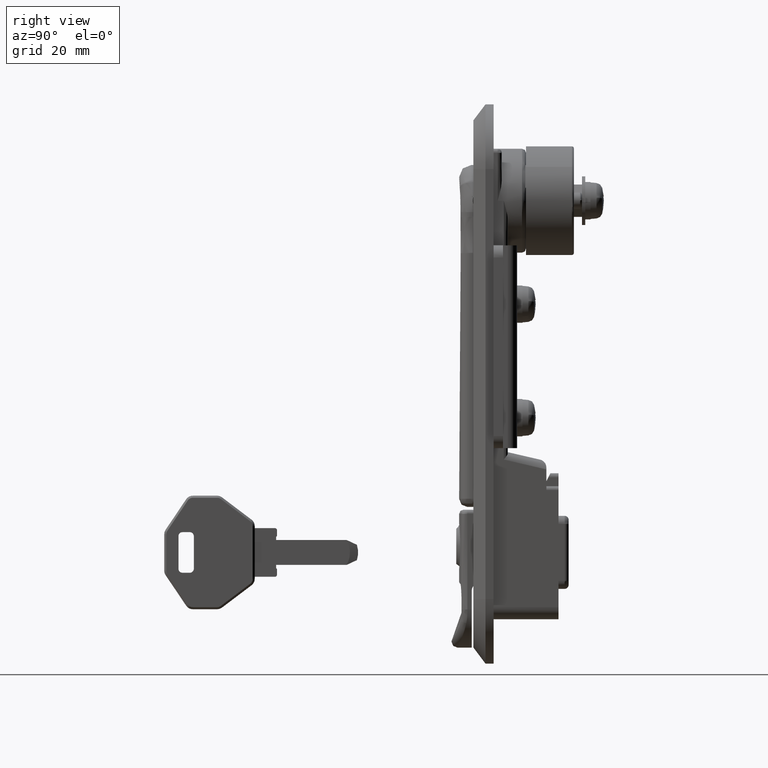
[diagram: clean part render]
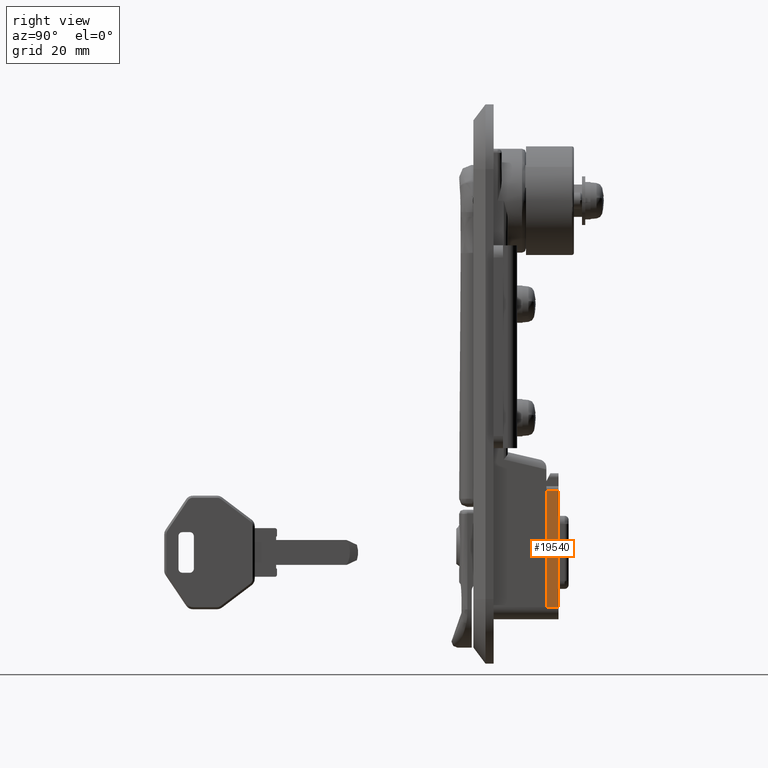
[diagram: same view with one face highlighted and labeled with its STEP entity id]
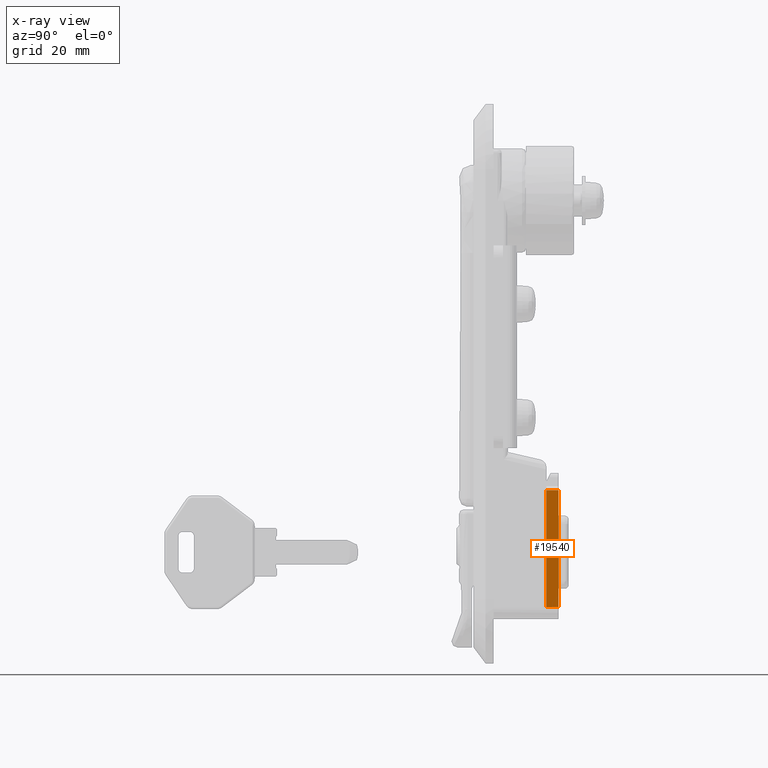
[diagram: x-ray of the same camera — body ghosted, the highlighted face saturated]
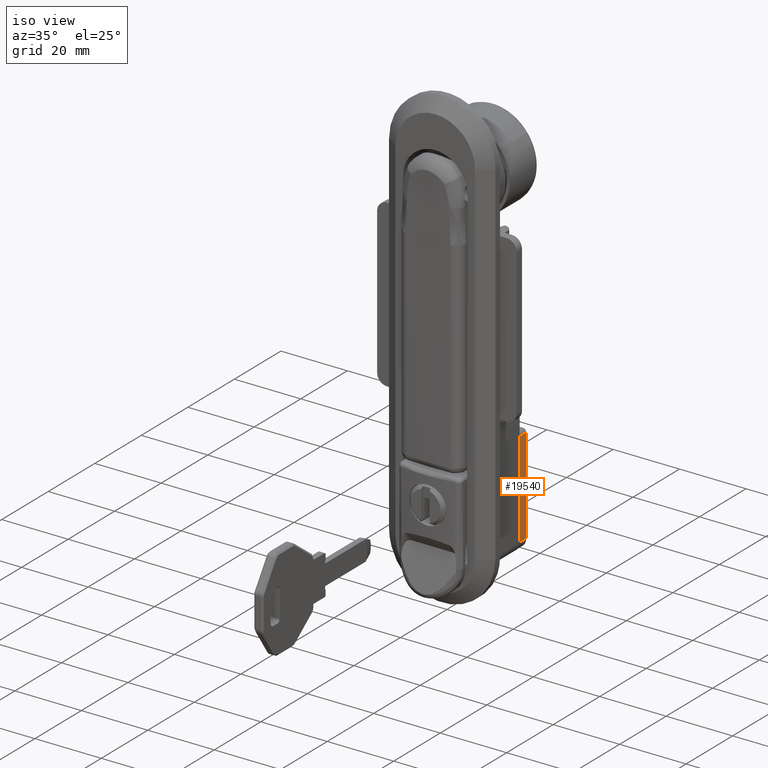
[diagram: same view with one face highlighted and labeled with its STEP entity id]
A machine part, right view. The second image highlights one B-rep face of the part: STEP entity #19540.
The next image is the same camera in x-ray: the body ghosted, the highlighted face saturated — about 0% of this face is hidden behind the body in this view.
A second angle (iso view) of the same face is appended — the face is thin or edge-on in the first view.
In plain terms, the highlighted face is a freeform B-spline surface patch.
Its self-contained STEP definition (entity closure, byte-faithful):
#19304=CARTESIAN_POINT('',(13.000000000006560,-12.699999999969579,-130.199999999681010));
#19305=VERTEX_POINT('',#19304);
#19319=CARTESIAN_POINT('',(13.000000000006560,-12.699999999969579,-101.399999999681000));
#19320=VERTEX_POINT('',#19319);
#19321=CARTESIAN_POINT('',(13.000000000006560,-12.699999999969579,-101.399999999681000));
#19322=CARTESIAN_POINT('',(13.000000000006560,-12.699999999969579,-130.199999999681010));
#19323=QUASI_UNIFORM_CURVE('',1,(#19321,#19322),.UNSPECIFIED.,.F.,.U.);
#19324=EDGE_CURVE('',#19320,#19305,#19323,.T.);
#19496=CARTESIAN_POINT('',(16.000000000006700,-12.699999999969579,-130.199999999681010));
#19497=VERTEX_POINT('',#19496);
#19511=CARTESIAN_POINT('',(16.000000000006700,-12.699999999969579,-130.199999999681010));
#19512=CARTESIAN_POINT('',(13.000000000006560,-12.699999999969579,-130.199999999681010));
#19513=QUASI_UNIFORM_CURVE('',1,(#19511,#19512),.UNSPECIFIED.,.F.,.U.);
#19514=EDGE_CURVE('',#19497,#19305,#19513,.T.);
#19519=CARTESIAN_POINT('',(12.850150005821130,-12.699999999969579,-131.638556596721710));
#19520=CARTESIAN_POINT('',(12.850150005821130,-12.699999999969579,-99.961441600195897));
#19521=CARTESIAN_POINT('',(16.149850074658399,-12.699999999969579,-131.638556596721710));
#19522=CARTESIAN_POINT('',(16.149850074658399,-12.699999999969579,-99.961441600195897));
#19523=B_SPLINE_SURFACE_WITH_KNOTS('',1,1,((#19519,#19521),(#19520,#19522)),.UNSPECIFIED.,.F.,.F.,.U.,(2,2),(2,2),(0.0,31.677114996525791),(0.0,3.299700068837264),.UNSPECIFIED.);
#19524=ORIENTED_EDGE('',*,*,#19324,.T.);
#19525=ORIENTED_EDGE('',*,*,#19514,.F.);
#19526=CARTESIAN_POINT('',(16.000000000006700,-12.699999999969579,-101.399999999681000));
#19527=VERTEX_POINT('',#19526);
#19528=CARTESIAN_POINT('',(16.000000000006700,-12.699999999969579,-101.399999999681000));
#19529=CARTESIAN_POINT('',(16.000000000006700,-12.699999999969579,-130.199999999681010));
#19530=QUASI_UNIFORM_CURVE('',1,(#19528,#19529),.UNSPECIFIED.,.F.,.U.);
#19531=EDGE_CURVE('',#19527,#19497,#19530,.T.);
#19532=ORIENTED_EDGE('',*,*,#19531,.F.);
#19533=CARTESIAN_POINT('',(16.000000000006700,-12.699999999969579,-101.399999999681000));
#19534=CARTESIAN_POINT('',(13.000000000006560,-12.699999999969579,-101.399999999681000));
#19535=QUASI_UNIFORM_CURVE('',1,(#19533,#19534),.UNSPECIFIED.,.F.,.U.);
#19536=EDGE_CURVE('',#19527,#19320,#19535,.T.);
#19537=ORIENTED_EDGE('',*,*,#19536,.T.);
#19538=EDGE_LOOP('',(#19524,#19525,#19532,#19537));
#19539=FACE_OUTER_BOUND('',#19538,.T.);
#19540=ADVANCED_FACE('',(#19539),#19523,.F.);